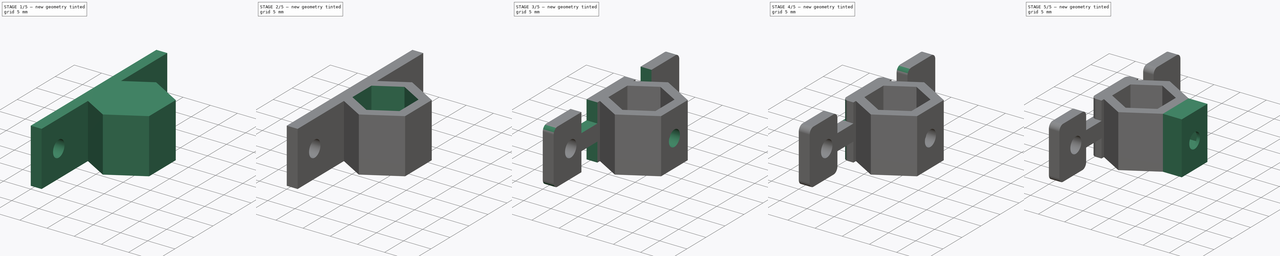
[diagram: build sequence overview — one tinted view per stage of 5, left to right]
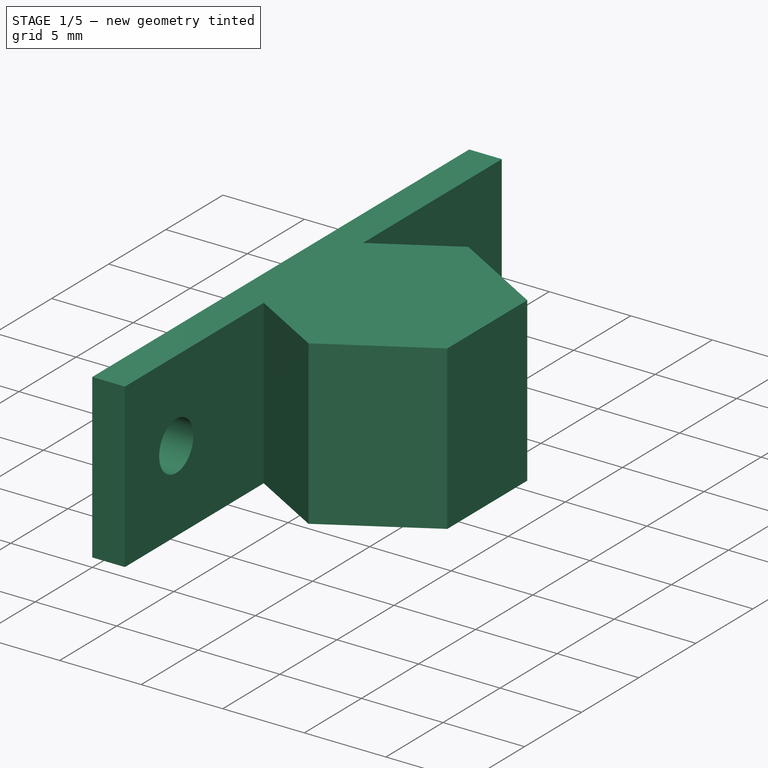
[diagram: stage 1 of 5 — iso view after this stage's code; geometry added in this stage tinted green]
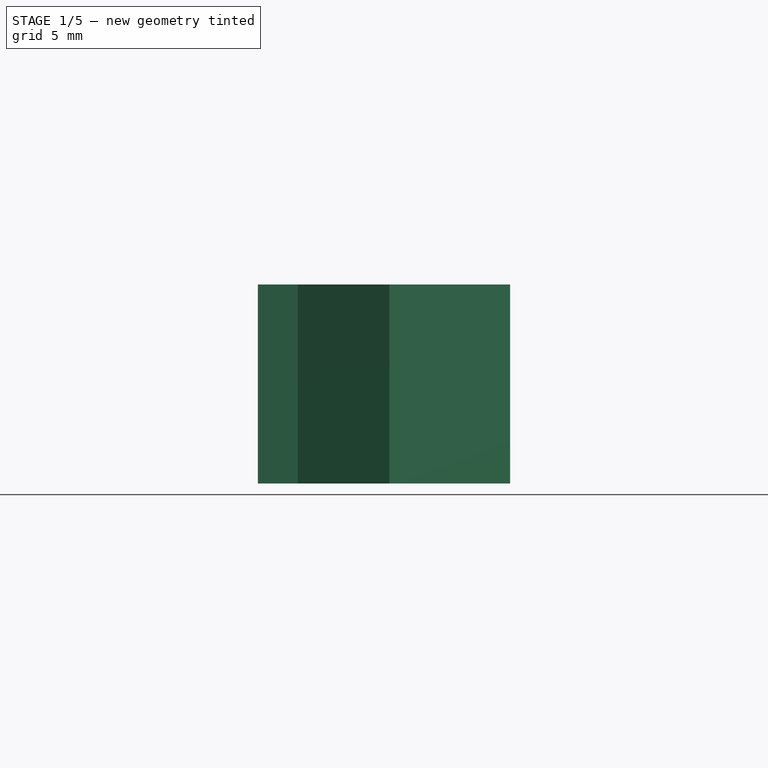
[diagram: stage 1 of 5 — front view after this stage's code; geometry added in this stage tinted green]
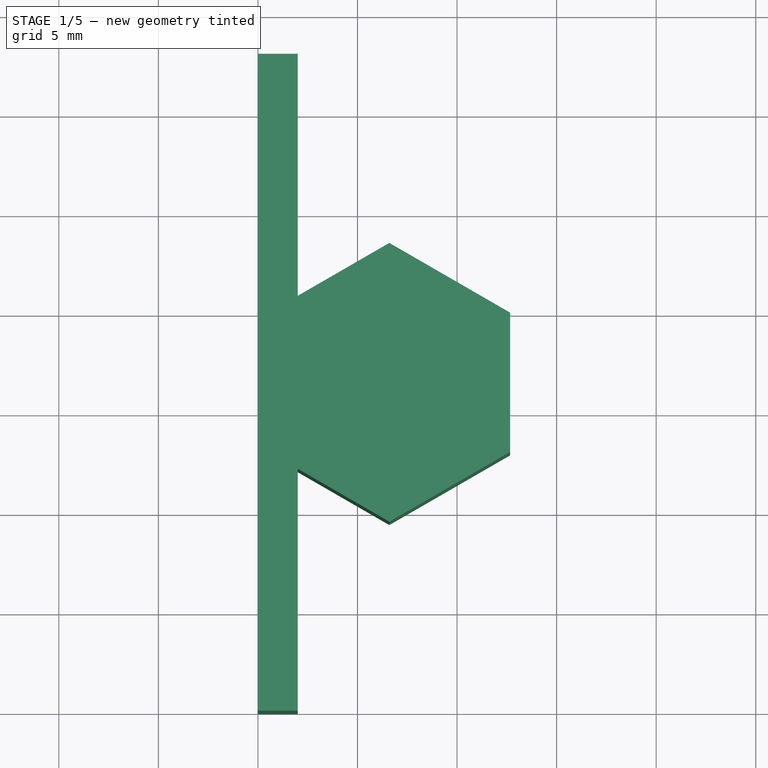
[diagram: stage 1 of 5 — top view after this stage's code; geometry added in this stage tinted green]
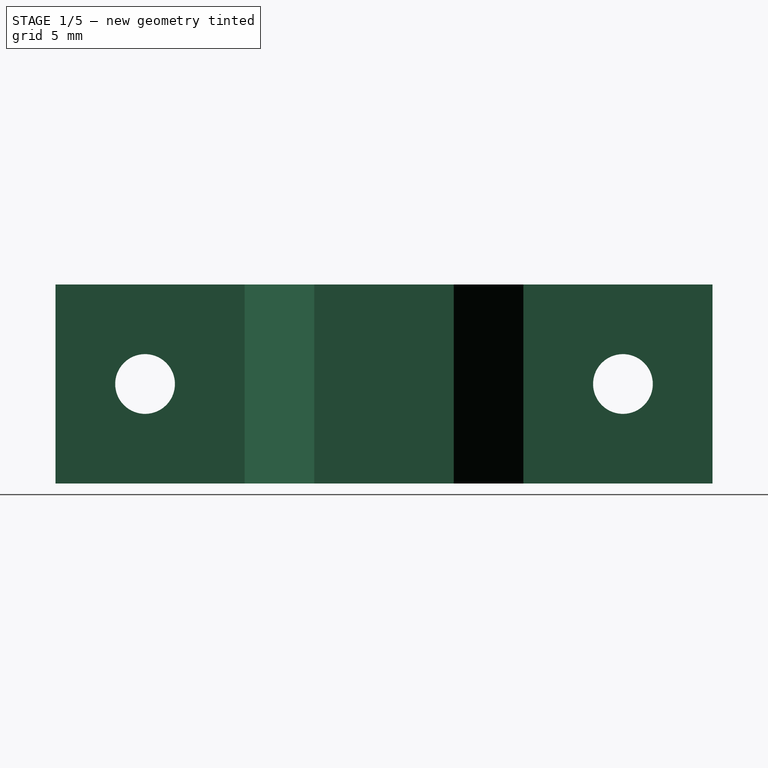
[diagram: stage 1 of 5 — right view after this stage's code; geometry added in this stage tinted green]
FCSTD DOCUMENT  (FreeCAD 0.17R13541 (Git))
Label: PlotterAdapter
License: Other
LicenseURL: https://www.gnu.org/licenses/gpl-2.0.html
objects: Sketcher::SketchObject×10, PartDesign::Pocket×7, Part::Feature×6, PartDesign::FeatureBase×4, PartDesign::Body×4, Part::MultiFuse×2, Part::Fillet×2, PartDesign::Pad×2, Part::Box×1, Part::Prism×1, Part::FeaturePython×1
note: 49 computed .brp shape members not serialized (recipe doc carries the construction recipe); baked Part::Feature solids carry a one-line shape summary decoded from their .brp

FEATURE [Part::Box] Box  label="Cube"
  AttacherType = Attacher::AttachEngine3D
  Height = 10
  Length = 2
  Width = 33
FEATURE [PartDesign::FeatureBase] BaseFeature
  BaseFeature = -> Box
FEATURE [Sketcher::SketchObject] Sketch
  ExternalGeometry = -> [BaseFeature]
  MapMode = 5
  Placement = pos=(2,0,0) rot=(0.57735,0.57735,0.57735;2.0944rad)
  Support = -> [BaseFeature]
  sketch-geometry (4):
    g0: Circle CenterX=4.5 CenterY=5 CenterZ=0 NormalX=0 NormalY=0 NormalZ=1 AngleXU=0 Radius=1.5
    g1: Circle CenterX=28.5 CenterY=5 CenterZ=0 NormalX=0 NormalY=0 NormalZ=1 AngleXU=0 Radius=1.5
    g2: LineSegment [constr] StartX=0 StartY=5 StartZ=0 EndX=33 EndY=5 EndZ=0
    g3: GeomPoint X=16.5 Y=5 Z=0
  constraints (12):
    c: Horizontal(g2)
    c: PointOnObject(g2,g-5)
    c: PointOnObject(g2,g-6)
    c: Symmetric(g-5,g-1,g2)
    c: PointOnObject(g0,g2)
    c: PointOnObject(g1,g2)
    c: Radius(g0) = 1.5
    c: Radius(g1) = 1.5
    c: DistanceX(g0,g1) = 24
    c: PointOnObject(g3,g2)
    c: Symmetric(g0,g1,g3)
    c: Symmetric(g2,g2,g3)
FEATURE [PartDesign::Pocket] Pocket
  BaseFeature = -> BaseFeature
  Length = 5
  Length2 = 100
  Profile = -> Sketch
  Type = 1
FEATURE [Part::Prism] Prism
  AttacherType = Attacher::AttachEngine3D
  Circumradius = 7
  Height = 10
  Placement = pos=(6.6,16.5,0) rot=(0,0,-1;1.5708rad)
  Polygon = 6
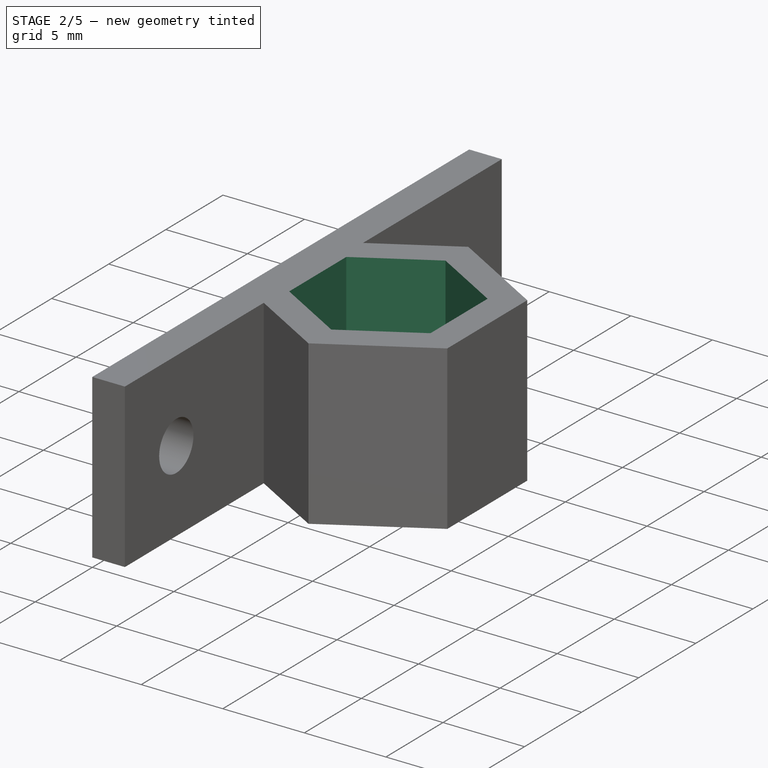
[diagram: stage 2 of 5 — iso view after this stage's code; geometry added in this stage tinted green]
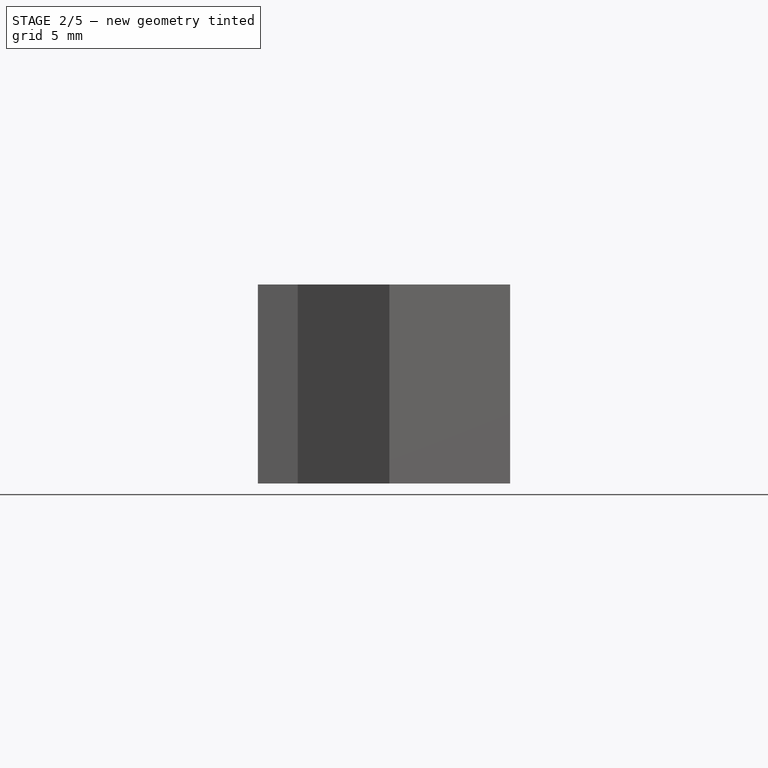
[diagram: stage 2 of 5 — front view after this stage's code; geometry added in this stage tinted green]
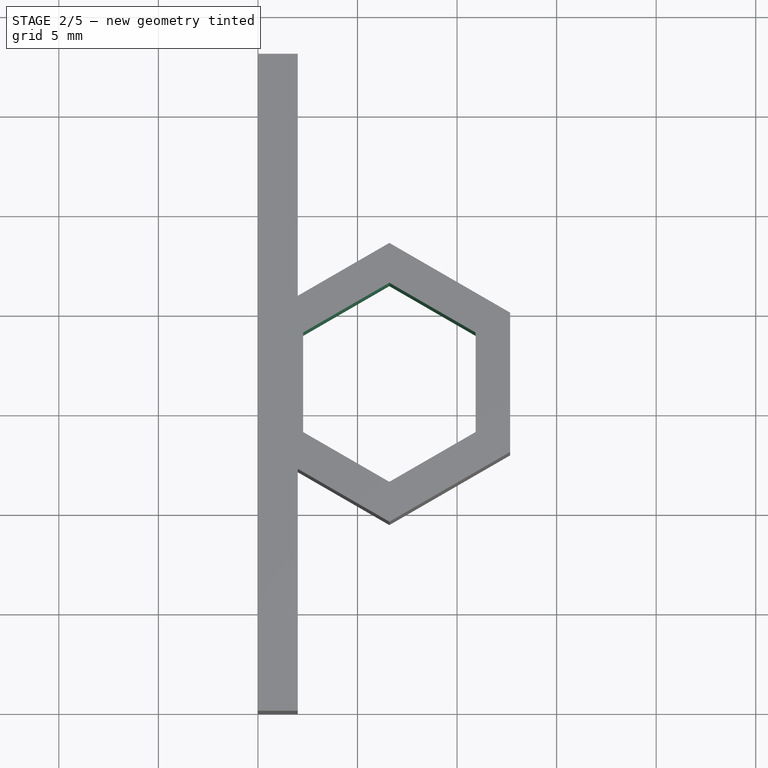
[diagram: stage 2 of 5 — top view after this stage's code; geometry added in this stage tinted green]
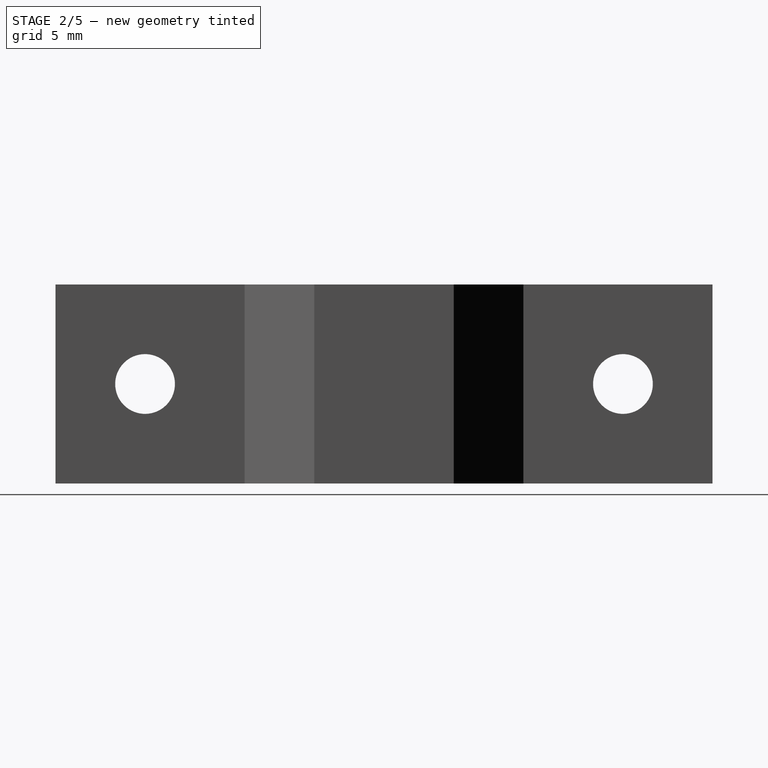
[diagram: stage 2 of 5 — right view after this stage's code; geometry added in this stage tinted green]
FEATURE [Sketcher::SketchObject] Sketch001  label="AlignHex"
  ExternalGeometry = -> [Pocket]
  MapMode = 5
  Placement = pos=(0,0,10) rot=(0,0,1;0rad)
  Support = -> [Pocket]
  sketch-geometry (2):
    g0: LineSegment StartX=0 StartY=13.75 StartZ=0 EndX=0 EndY=19.25 EndZ=0
    g1: GeomPoint X=0 Y=16.5 Z=0
  constraints (5):
    c: PointOnObject(g0,g-3)
    c: PointOnObject(g0,g-3)
    c: DistanceY(g0,g0) = 5.5
    c: Symmetric(g0,g0,g1)
    c: Symmetric(g-1,g-5,g1)
FEATURE [PartDesign::Body] Body
  BaseFeature = -> Box
  Group = -> [BaseFeature,Sketch,Pocket,Sketch001]
  Origin = -> Origin
  Tip = -> Pocket
FEATURE [Part::MultiFuse] Fusion
  Shapes = -> [Pocket,Prism]
FEATURE [PartDesign::FeatureBase] BaseFeature001
  BaseFeature = -> Fusion
FEATURE [Sketcher::SketchObject] Sketch005
  ExternalGeometry = -> [BaseFeature001]
  MapMode = 5
  Placement = pos=(0,0,0) rot=(1,0,0;3.14159rad)
  Support = -> [BaseFeature001]
  sketch-geometry (7):
    g0: LineSegment StartX=10.9301 StartY=-19 StartZ=0 EndX=10.9301 EndY=-14 EndZ=0
    g1: LineSegment StartX=10.9301 StartY=-14 StartZ=0 EndX=6.6 EndY=-11.5 EndZ=0
    g2: LineSegment StartX=6.6 StartY=-11.5 StartZ=0 EndX=2.26987 EndY=-14 EndZ=0
    g3: LineSegment StartX=2.26987 StartY=-14 StartZ=0 EndX=2.26987 EndY=-19 EndZ=0
    g4: LineSegment StartX=2.26987 StartY=-19 StartZ=0 EndX=6.6 EndY=-21.5 EndZ=0
    g5: LineSegment StartX=6.6 StartY=-21.5 StartZ=0 EndX=10.9301 EndY=-19 EndZ=0
    g6: Circle [constr] CenterX=6.6 CenterY=-16.5 CenterZ=0 NormalX=0 NormalY=0 NormalZ=1 AngleXU=0 Radius=5
  constraints (16):
    c: Coincident(g0,g1)
    c: Coincident(g1,g2)
    c: Coincident(g2,g3)
    c: Coincident(g3,g4)
    c: Coincident(g4,g5)
    c: Coincident(g5,g0)
    c: Equal(g0, g1-g5) x5
    c: PointOnObject(g0,g6)
    c: PointOnObject(g1,g6)
    c: PointOnObject(g2,g6)
    c: PointOnObject(g3,g6)
    c: PointOnObject(g4,g6)
    c: PointOnObject(g5,g6)
    c: Radius(g6) = 5
    c: Symmetric(g-6,g-5,g6)
    c: Vertical(g3)
FEATURE [PartDesign::Pocket] Pocket004
  BaseFeature = -> BaseFeature001
  Length = 5
  Length2 = 100
  Profile = -> Sketch005
  Type = 1
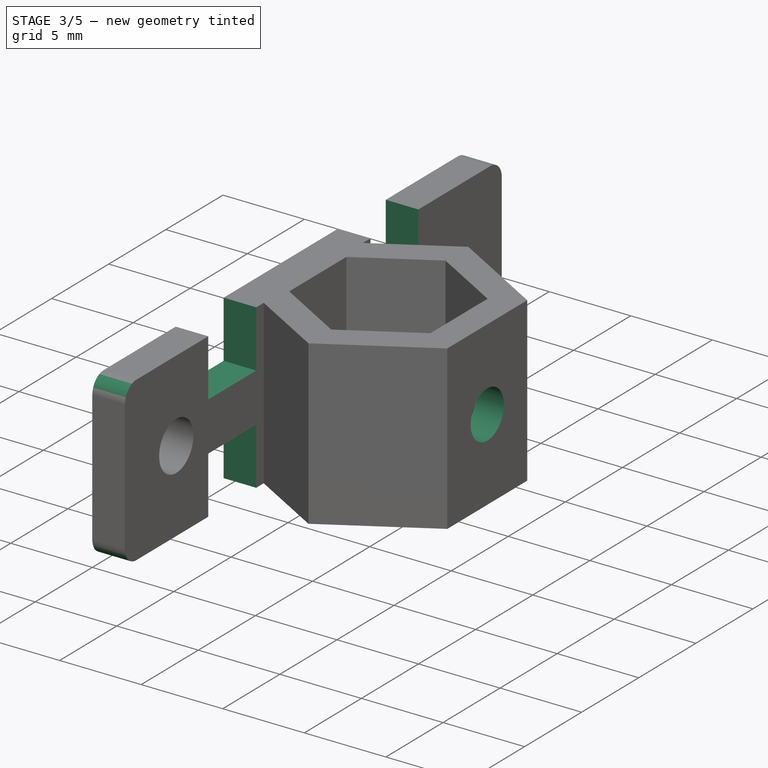
[diagram: stage 3 of 5 — iso view after this stage's code; geometry added in this stage tinted green]
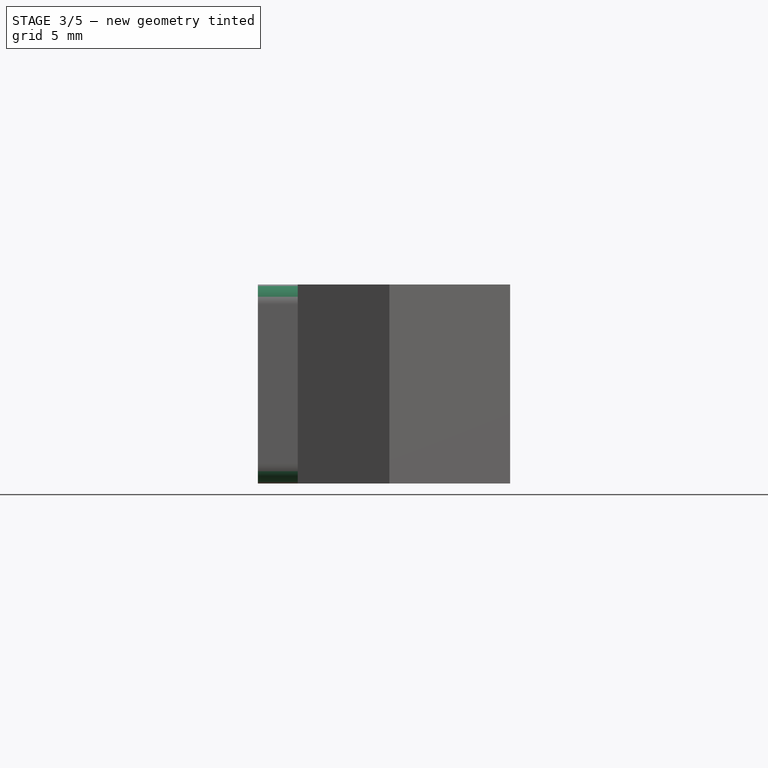
[diagram: stage 3 of 5 — front view after this stage's code; geometry added in this stage tinted green]
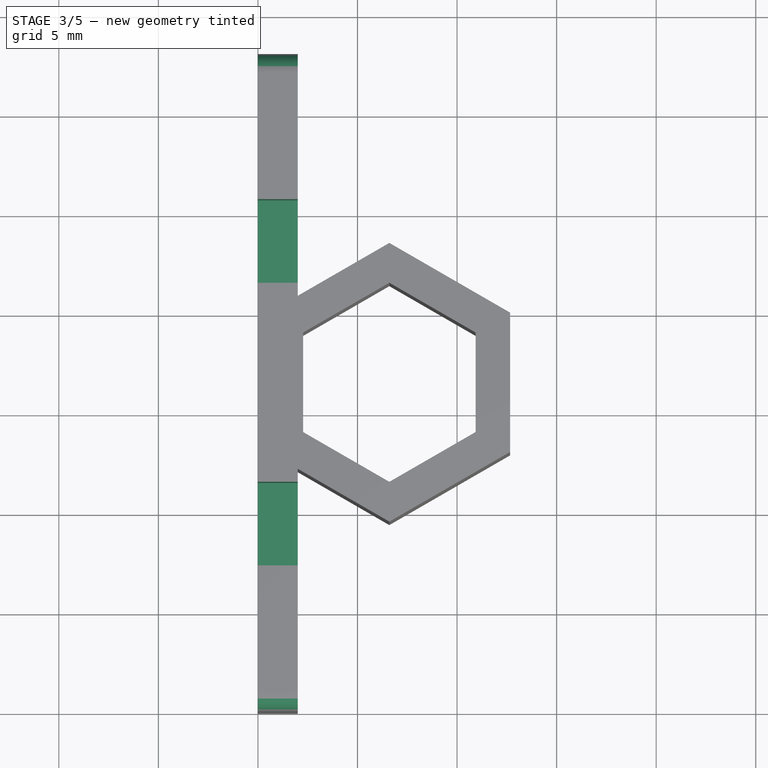
[diagram: stage 3 of 5 — top view after this stage's code; geometry added in this stage tinted green]
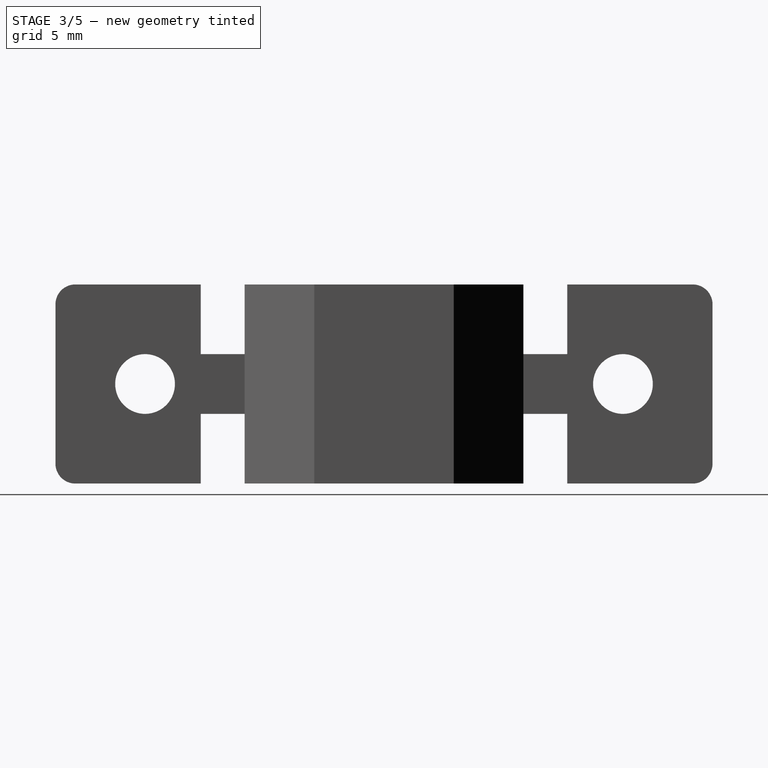
[diagram: stage 3 of 5 — right view after this stage's code; geometry added in this stage tinted green]
FEATURE [Sketcher::SketchObject] Sketch006
  ExternalGeometry = -> [Pocket004]
  MapMode = 5
  Placement = pos=(12.6622,0,0) rot=(0.57735,0.57735,0.57735;2.0944rad)
  Support = -> [Pocket004]
  sketch-geometry (3):
    g0: GeomPoint X=16.5 Y=10 Z=0
    g1: GeomPoint X=16.5 Y=0 Z=0
    g2: Circle CenterX=16.5 CenterY=5 CenterZ=0 NormalX=0 NormalY=0 NormalZ=1 AngleXU=0 Radius=1.45
  constraints (6):
    c: PointOnObject(g0,g-3)
    c: PointOnObject(g1,g-4)
    c: Symmetric(g-3,g-3,g0)
    c: Symmetric(g-4,g-4,g1)
    c: Symmetric(g0,g1,g2)
    c: Radius(g2) = 1.45
FEATURE [PartDesign::Pocket] Pocket005
  BaseFeature = -> Pocket004
  Length = 2
  Length2 = 100
  Profile = -> Sketch006
  Type = 0
FEATURE [PartDesign::Body] Body001  label="UnionHex"
  BaseFeature = -> Fusion
  Group = -> [BaseFeature001,Sketch005,Pocket004,Sketch006,Pocket005]
  Origin = -> Origin001
  Tip = -> Pocket005
FEATURE [Part::Fillet] Fillet
  Base = -> Pocket005
  Edges = 4 edges r=1: [Edge7,Edge9,Edge10,Edge16]
FEATURE [PartDesign::FeatureBase] BaseFeature002
  BaseFeature = -> Fillet
FEATURE [Sketcher::SketchObject] Sketch004
  ExternalGeometry = -> [BaseFeature002]
  MapMode = 5
  Placement = pos=(0,0,0) rot=(0.57735,-0.57735,-0.57735;2.0944rad)
  Support = -> [BaseFeature002]
  sketch-geometry (18):
    g0: LineSegment StartX=-25.7 StartY=10 StartZ=0 EndX=-21.5 EndY=10 EndZ=0
    g1: LineSegment StartX=-21.5 StartY=10 StartZ=0 EndX=-21.5 EndY=6.5 EndZ=0
    g2: LineSegment StartX=-21.5 StartY=6.5 StartZ=0 EndX=-25.7 EndY=6.5 EndZ=0
    g3: LineSegment StartX=-25.7 StartY=6.5 StartZ=0 EndX=-25.7 EndY=10 EndZ=0
    g4: LineSegment StartX=-25.7 StartY=3.5 StartZ=0 EndX=-21.5 EndY=3.5 EndZ=0
    g5: LineSegment StartX=-21.5 StartY=3.5 StartZ=0 EndX=-21.5 EndY=0 EndZ=0
    g6: LineSegment StartX=-21.5 StartY=0 StartZ=0 EndX=-25.7 EndY=0 EndZ=0
    g7: LineSegment StartX=-25.7 StartY=0 StartZ=0 EndX=-25.7 EndY=3.5 EndZ=0
    g8: LineSegment StartX=-11.5 StartY=10 StartZ=0 EndX=-7.3 EndY=10 EndZ=0
    g9: LineSegment StartX=-7.3 StartY=10 StartZ=0 EndX=-7.3 EndY=6.5 EndZ=0
    g10: LineSegment StartX=-7.3 StartY=6.5 StartZ=0 EndX=-11.5 EndY=6.5 EndZ=0
    g11: LineSegment StartX=-11.5 StartY=6.5 StartZ=0 EndX=-11.5 EndY=10 EndZ=0
    g12: LineSegment StartX=-11.5 StartY=3.5 StartZ=0 EndX=-7.3 EndY=3.5 EndZ=0
    g13: LineSegment StartX=-7.3 StartY=3.5 StartZ=0 EndX=-7.3 EndY=0 EndZ=0
    g14: LineSegment StartX=-7.3 StartY=0 StartZ=0 EndX=-11.5 EndY=0 EndZ=0
    g15: LineSegment StartX=-11.5 StartY=0 StartZ=0 EndX=-11.5 EndY=3.5 EndZ=0
    g16: GeomPoint X=-16.5 Y=10 Z=0
    g17: GeomPoint X=-16.5 Y=0 Z=0
  constraints (50):
    c: Coincident(g0,g1)
    c: Coincident(g1,g2)
    c: Coincident(g2,g3)
    c: Coincident(g3,g0)
    c: Horizontal(g2)
    c: Vertical(g1)
    c: Vertical(g3)
    c: Coincident(g4,g5)
    c: Coincident(g5,g6)
    c: Coincident(g6,g7)
    c: Coincident(g7,g4)
    c: Horizontal(g4)
    c: Vertical(g5)
    c: Vertical(g7)
    c: Coincident(g8,g9)
    c: Coincident(g9,g10)
    c: Coincident(g10,g11)
    c: Coincident(g11,g8)
    c: Horizontal(g10)
    c: Vertical(g9)
    c: Vertical(g11)
    c: Coincident(g12,g13)
    c: Coincident(g13,g14)
    c: Coincident(g14,g15)
    c: Coincident(g15,g12)
    c: Horizontal(g12)
    c: Vertical(g13)
    c: Vertical(g15)
    c: PointOnObject(g0,g-5)
    c: PointOnObject(g0,g-5)
    c: PointOnObject(g8,g-5)
    c: PointOnObject(g8,g-5)
    c: PointOnObject(g6,g-6)
    c: PointOnObject(g5,g-6)
    c: PointOnObject(g14,g-6)
    c: PointOnObject(g13,g-6)
    c: DistanceX(g0,g8) = 10
    c: Symmetric(g-5,g-5,g16)
    c: Symmetric(g0,g8,g16)
    c: Symmetric(g5,g14,g17)
    c: Symmetric(g-6,g-6,g17)
    c: DistanceY(g3,g3) = 3.5
    c: DistanceX(g0,g0) = 4.2
    c: Equal(g14,g8)
    c: Equal(g0,g6)
    c: DistanceX(g5,g14) = 10
    c: Equal(g3,g7)
    c: Equal(g3,g11)
    c: Equal(g3,g15)
    c: Equal(g8,g0)
FEATURE [PartDesign::Pocket] Pocket003  label="ReduceHeight"
  BaseFeature = -> BaseFeature002
  Length = 2
  Length2 = 100
  Profile = -> Sketch004
  Type = 0
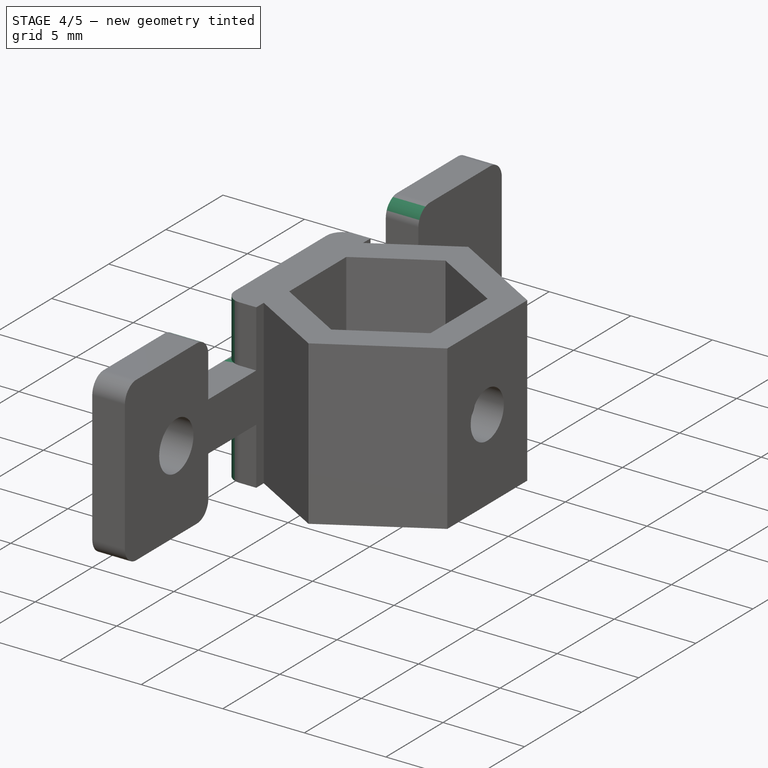
[diagram: stage 4 of 5 — iso view after this stage's code; geometry added in this stage tinted green]
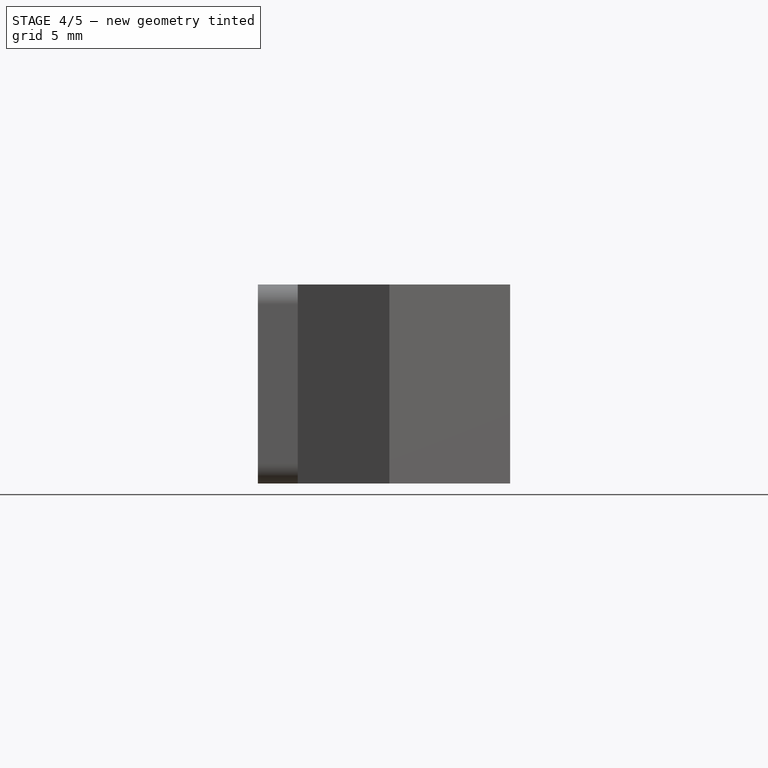
[diagram: stage 4 of 5 — front view after this stage's code; geometry added in this stage tinted green]
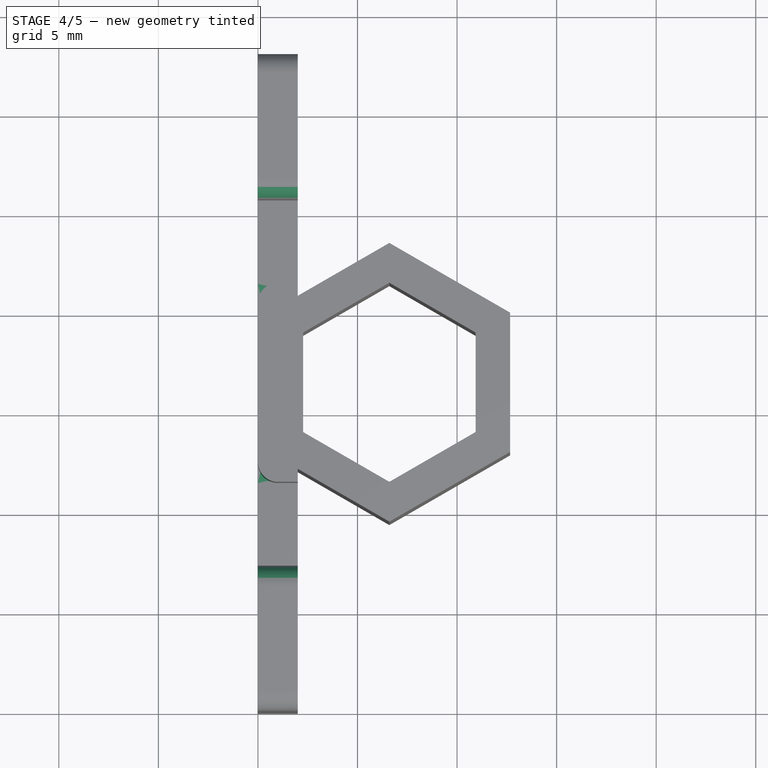
[diagram: stage 4 of 5 — top view after this stage's code; geometry added in this stage tinted green]
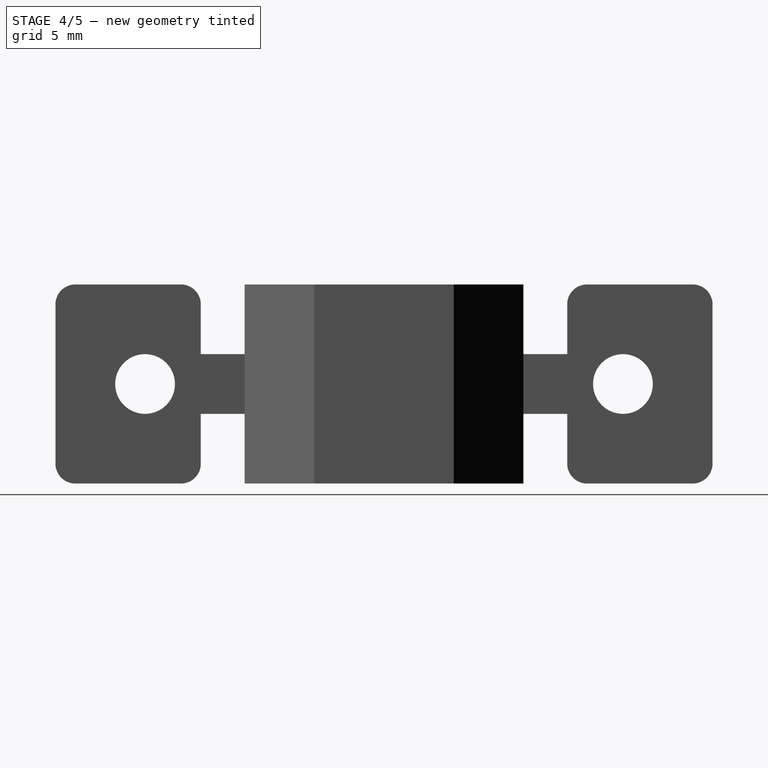
[diagram: stage 4 of 5 — right view after this stage's code; geometry added in this stage tinted green]
FEATURE [PartDesign::Body] Body002  label="FilletBody"
  BaseFeature = -> Fillet
  Group = -> [BaseFeature002,Sketch004,Pocket003]
  Origin = -> Origin002
  Tip = -> Pocket003
FEATURE [Part::Fillet] Fillet001
  Base = -> Pocket003
  Edges = 8 edges r=1: [Edge6,Edge8,Edge18,Edge20,Edge32,Edge50,Edge60,Edge78]
FEATURE [PartDesign::FeatureBase] BaseFeature003
  BaseFeature = -> Fillet001
FEATURE [Part::Feature] path5215
  shape: bbox 3.575 x 6.158 x 2.133e-07 mm, 1 faces, 0 solids (baked)
FEATURE [Part::Feature] path5215001
  shape: bbox 8.492 x 6.158 x 2.133e-07 mm, 1 faces, 0 solids (baked)
FEATURE [Part::Feature] path5215002
  shape: bbox 15.48 x 6.158 x 2.133e-07 mm, 1 faces, 0 solids (baked)
FEATURE [Part::Feature] path5215003
  shape: bbox 67.73 x 6.158 x 2.133e-07 mm, 1 faces, 0 solids (baked)
FEATURE [Part::Feature] path5215004
  shape: bbox 29.31 x 6.158 x 2.133e-07 mm, 1 faces, 0 solids (baked)
FEATURE [Part::Feature] path5215005
  shape: bbox 4.886 x 6.158 x 2.133e-07 mm, 1 faces, 0 solids (baked)
FEATURE [Part::MultiFuse] Fusion001  label="MagicLogo"
  Shapes = -> [path5215,path5215001,path5215002,path5215003,path5215004,path5215005]
FEATURE [Sketcher::SketchObject] Sketch007  label="AlignLogo"
  sketch-geometry (33):
    g0: BSplineCurve PolesCount=4 KnotsCount=2 Degree=3 IsPeriodic=0
    g1: BSplineCurve PolesCount=4 KnotsCount=2 Degree=3 IsPeriodic=0
    g2: BSplineCurve PolesCount=2 KnotsCount=2 Degree=1 IsPeriodic=0
    g3: BSplineCurve PolesCount=4 KnotsCount=2 Degree=3 IsPeriodic=0
    g4: BSplineCurve PolesCount=4 KnotsCount=2 Degree=3 IsPeriodic=0
    g5: BSplineCurve PolesCount=2 KnotsCount=2 Degree=1 IsPeriodic=0
    g6: BSplineCurve PolesCount=4 KnotsCount=2 Degree=3 IsPeriodic=0
    g7: BSplineCurve PolesCount=2 KnotsCount=2 Degree=1 IsPeriodic=0
    g8: BSplineCurve PolesCount=4 KnotsCount=2 Degree=3 IsPeriodic=0
    g9: BSplineCurve PolesCount=2 KnotsCount=2 Degree=1 IsPeriodic=0
    g10: BSplineCurve PolesCount=4 KnotsCount=2 Degree=3 IsPeriodic=0
    g11: BSplineCurve PolesCount=2 KnotsCount=2 Degree=1 IsPeriodic=0
    g12: BSplineCurve PolesCount=4 KnotsCount=2 Degree=3 IsPeriodic=0
    g13: BSplineCurve PolesCount=2 KnotsCount=2 Degree=1 IsPeriodic=0
    g14: BSplineCurve PolesCount=4 KnotsCount=2 Degree=3 IsPeriodic=0
    g15: BSplineCurve PolesCount=4 KnotsCount=2 Degree=3 IsPeriodic=0
    g16: BSplineCurve PolesCount=4 KnotsCount=2 Degree=3 IsPeriodic=0
    g17: BSplineCurve PolesCount=2 KnotsCount=2 Degree=1 IsPeriodic=0
    g18: BSplineCurve PolesCount=4 KnotsCount=2 Degree=3 IsPeriodic=0
    g19: BSplineCurve PolesCount=4 KnotsCount=2 Degree=3 IsPeriodic=0
    g20: BSplineCurve PolesCount=4 KnotsCount=2 Degree=3 IsPeriodic=0
    g21: BSplineCurve PolesCount=2 KnotsCount=2 Degree=1 IsPeriodic=0
    g22: BSplineCurve PolesCount=4 KnotsCount=2 Degree=3 IsPeriodic=0
    g23: BSplineCurve PolesCount=4 KnotsCount=2 Degree=3 IsPeriodic=0
    g24: BSplineCurve PolesCount=2 KnotsCount=2 Degree=1 IsPeriodic=0
    g25: BSplineCurve PolesCount=4 KnotsCount=2 Degree=3 IsPeriodic=0
    g26: BSplineCurve PolesCount=4 KnotsCount=2 Degree=3 IsPeriodic=0
    g27: BSplineCurve PolesCount=2 KnotsCount=2 Degree=1 IsPeriodic=0
    g28: BSplineCurve PolesCount=4 KnotsCount=2 Degree=3 IsPeriodic=0
    g29: BSplineCurve PolesCount=4 KnotsCount=2 Degree=3 IsPeriodic=0
    g30: BSplineCurve PolesCount=4 KnotsCount=2 Degree=3 IsPeriodic=0
    g31: BSplineCurve PolesCount=4 KnotsCount=2 Degree=3 IsPeriodic=0
    g32: BSplineCurve PolesCount=2 KnotsCount=2 Degree=1 IsPeriodic=0
  constraints (33):
    c: Coincident(g0,g1)
    c: Coincident(g1,g2)
    c: Coincident(g2,g3)
    c: Coincident(g3,g4)
    c: Coincident(g4,g5)
    c: Coincident(g5,g0)
    c: Coincident(g6,g7)
    c: Coincident(g7,g8)
    c: Coincident(g8,g9)
    c: Coincident(g9,g6)
    c: Coincident(g10,g11)
    c: Coincident(g11,g12)
    c: Coincident(g12,g13)
    c: Coincident(g13,g10)
    c: Coincident(g14,g15)
    c: Coincident(g15,g16)
    c: Coincident(g16,g17)
    c: Coincident(g17,g18)
    c: Coincident(g18,g19)
    c: Coincident(g19,g20)
    c: Coincident(g20,g21)
    c: Coincident(g21,g14)
    c: Coincident(g22,g23)
    c: Coincident(g23,g24)
    c: Coincident(g24,g25)
    c: Coincident(g25,g26)
    c: Coincident(g26,g27)
    c: Coincident(g27,g22)
    c: Coincident(g28,g29)
    c: Coincident(g29,g30)
    c: Coincident(g30,g31)
    c: Coincident(g31,g32)
    c: Coincident(g32,g28)
FEATURE [Part::FeaturePython] Scale  # Draft clone (typed FeaturePython)
  Fuse = false
  Objects = -> [Sketch007]
  Placement = pos=(-0.0301548,20.0356,8.5637) rot=(-0.57735,0.57735,0.57735;4.18879rad)
  Scale = (0.1,0.1,0.1)
FEATURE [Sketcher::SketchObject] Sketch009  label="ScaledLogo"
  AttachmentOffset = pos=(0,0,0) rot=(0,0,1;1.5708rad)
  MapMode = 5
  Placement = pos=(0,0,0) rot=(0,-1,0;1.5708rad)
  Support = -> [BaseFeature003]
  sketch-geometry (33):
    g0: BSplineCurve PolesCount=4 KnotsCount=2 Degree=3 IsPeriodic=0
    g1: BSplineCurve PolesCount=4 KnotsCount=2 Degree=3 IsPeriodic=0
    g2: BSplineCurve PolesCount=2 KnotsCount=2 Degree=1 IsPeriodic=0
    g3: BSplineCurve PolesCount=4 KnotsCount=2 Degree=3 IsPeriodic=0
    g4: BSplineCurve PolesCount=4 KnotsCount=2 Degree=3 IsPeriodic=0
    g5: BSplineCurve PolesCount=2 KnotsCount=2 Degree=1 IsPeriodic=0
    g6: BSplineCurve PolesCount=4 KnotsCount=2 Degree=3 IsPeriodic=0
    g7: BSplineCurve PolesCount=2 KnotsCount=2 Degree=1 IsPeriodic=0
    g8: BSplineCurve PolesCount=4 KnotsCount=2 Degree=3 IsPeriodic=0
    g9: BSplineCurve PolesCount=2 KnotsCount=2 Degree=1 IsPeriodic=0
    g10: BSplineCurve PolesCount=4 KnotsCount=2 Degree=3 IsPeriodic=0
    g11: BSplineCurve PolesCount=2 KnotsCount=2 Degree=1 IsPeriodic=0
    g12: BSplineCurve PolesCount=4 KnotsCount=2 Degree=3 IsPeriodic=0
    g13: BSplineCurve PolesCount=2 KnotsCount=2 Degree=1 IsPeriodic=0
    g14: BSplineCurve PolesCount=4 KnotsCount=2 Degree=3 IsPeriodic=0
    g15: BSplineCurve PolesCount=4 KnotsCount=2 Degree=3 IsPeriodic=0
    g16: BSplineCurve PolesCount=4 KnotsCount=2 Degree=3 IsPeriodic=0
    g17: BSplineCurve PolesCount=2 KnotsCount=2 Degree=1 IsPeriodic=0
    g18: BSplineCurve PolesCount=4 KnotsCount=2 Degree=3 IsPeriodic=0
    g19: BSplineCurve PolesCount=4 KnotsCount=2 Degree=3 IsPeriodic=0
    g20: BSplineCurve PolesCount=4 KnotsCount=2 Degree=3 IsPeriodic=0
    g21: BSplineCurve PolesCount=2 KnotsCount=2 Degree=1 IsPeriodic=0
    g22: BSplineCurve PolesCount=4 KnotsCount=2 Degree=3 IsPeriodic=0
    g23: BSplineCurve PolesCount=4 KnotsCount=2 Degree=3 IsPeriodic=0
    g24: BSplineCurve PolesCount=2 KnotsCount=2 Degree=1 IsPeriodic=0
    g25: BSplineCurve PolesCount=4 KnotsCount=2 Degree=3 IsPeriodic=0
    g26: BSplineCurve PolesCount=4 KnotsCount=2 Degree=3 IsPeriodic=0
    g27: BSplineCurve PolesCount=2 KnotsCount=2 Degree=1 IsPeriodic=0
    g28: BSplineCurve PolesCount=4 KnotsCount=2 Degree=3 IsPeriodic=0
    g29: BSplineCurve PolesCount=4 KnotsCount=2 Degree=3 IsPeriodic=0
    g30: BSplineCurve PolesCount=4 KnotsCount=2 Degree=3 IsPeriodic=0
    g31: BSplineCurve PolesCount=4 KnotsCount=2 Degree=3 IsPeriodic=0
    g32: BSplineCurve PolesCount=2 KnotsCount=2 Degree=1 IsPeriodic=0
  constraints (33):
    c: Coincident(g0,g1)
    c: Coincident(g1,g2)
    c: Coincident(g2,g3)
    c: Coincident(g3,g4)
    c: Coincident(g4,g5)
    c: Coincident(g5,g0)
    c: Coincident(g6,g7)
    c: Coincident(g7,g8)
    c: Coincident(g8,g9)
    c: Coincident(g9,g6)
    c: Coincident(g10,g11)
    c: Coincident(g11,g12)
    c: Coincident(g12,g13)
    c: Coincident(g13,g10)
    c: Coincident(g14,g15)
    c: Coincident(g15,g16)
    c: Coincident(g16,g17)
    c: Coincident(g17,g18)
    c: Coincident(g18,g19)
    c: Coincident(g19,g20)
    c: Coincident(g20,g21)
    c: Coincident(g21,g14)
    c: Coincident(g22,g23)
    c: Coincident(g23,g24)
    c: Coincident(g24,g25)
    c: Coincident(g25,g26)
    c: Coincident(g26,g27)
    c: Coincident(g27,g22)
    c: Coincident(g28,g29)
    c: Coincident(g29,g30)
    c: Coincident(g30,g31)
    c: Coincident(g31,g32)
    c: Coincident(g32,g28)
FEATURE [PartDesign::Pocket] Pocket006
  BaseFeature = -> BaseFeature003
  Length = 1
  Length2 = 100
  Profile = -> Sketch009
  Type = 0
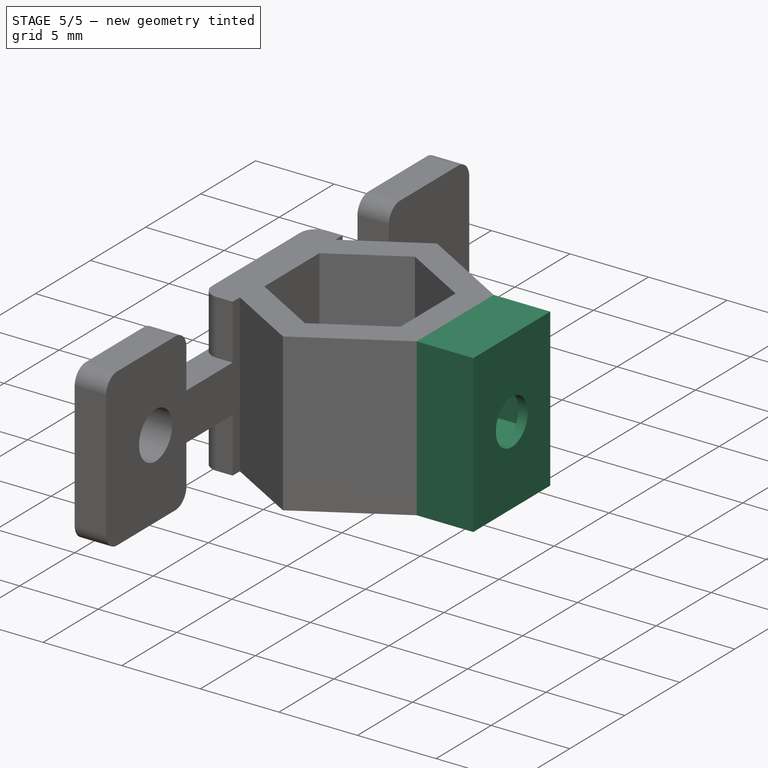
[diagram: stage 5 of 5 — iso view after this stage's code; geometry added in this stage tinted green]
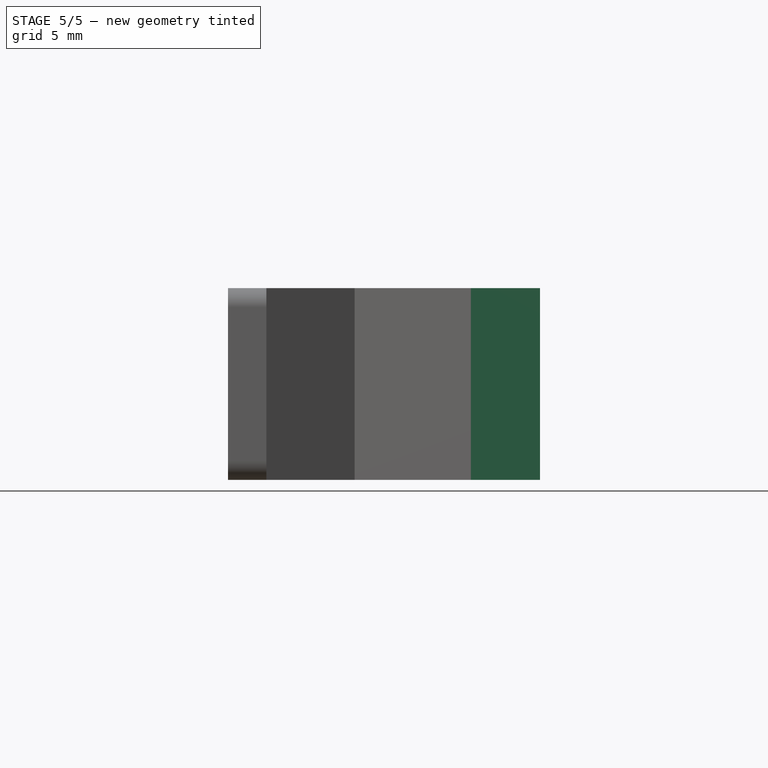
[diagram: stage 5 of 5 — front view after this stage's code; geometry added in this stage tinted green]
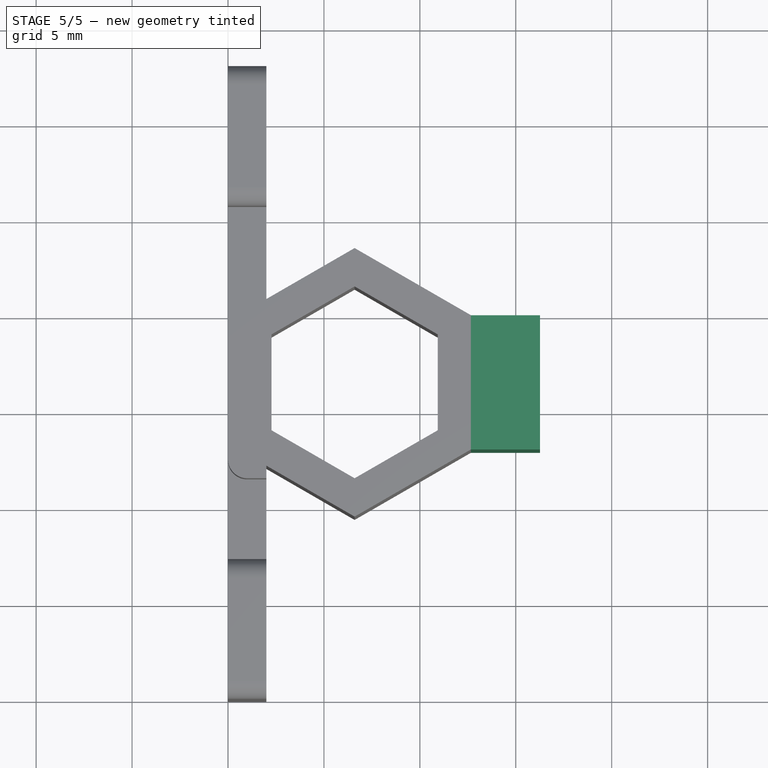
[diagram: stage 5 of 5 — top view after this stage's code; geometry added in this stage tinted green]
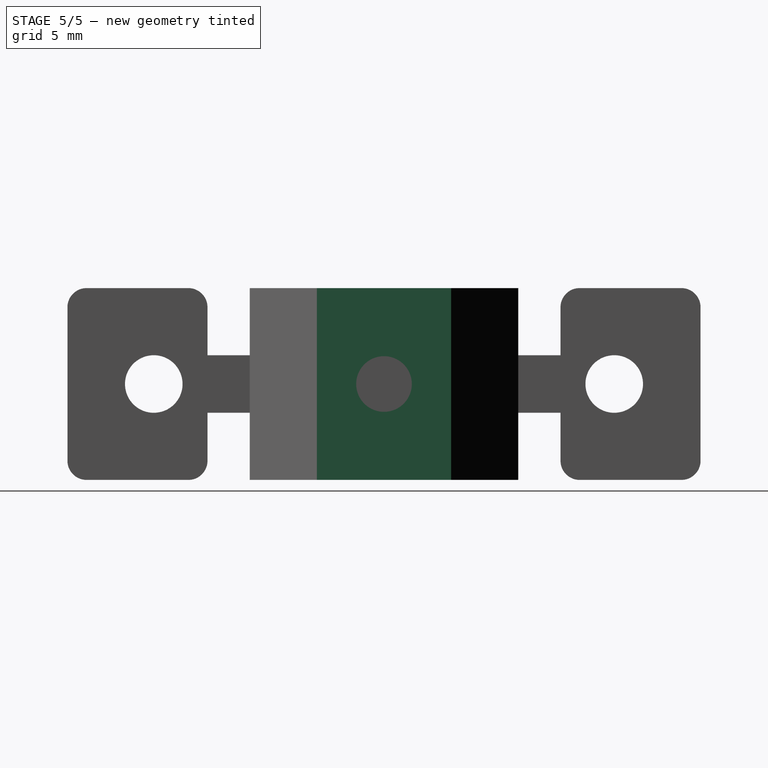
[diagram: stage 5 of 5 — right view after this stage's code; geometry added in this stage tinted green]
FEATURE [PartDesign::Pad] Pad
  BaseFeature = -> Pocket006
  Length = 3
  Length2 = 100
  Profile = -> Pocket006 [Face84]
  Type = 0
FEATURE [Sketcher::SketchObject] Sketch010
  ExternalGeometry = -> [Pad]
  MapMode = 5
  Placement = pos=(15.6622,0,0) rot=(0.57735,0.57735,0.57735;2.0944rad)
  Support = -> [Pad]
  sketch-geometry (9):
    g0: LineSegment StartX=13.2957 StartY=3.15 StartZ=0 EndX=16.5 EndY=1.3 EndZ=0
    g1: LineSegment StartX=16.5 StartY=1.3 StartZ=0 EndX=19.7043 EndY=3.15 EndZ=0
    g2: LineSegment StartX=19.7043 StartY=3.15 StartZ=0 EndX=19.7043 EndY=6.85 EndZ=0
    g3: LineSegment StartX=19.7043 StartY=6.85 StartZ=0 EndX=16.5 EndY=8.7 EndZ=0
    g4: LineSegment StartX=16.5 StartY=8.7 StartZ=0 EndX=13.2957 EndY=6.85 EndZ=0
    g5: LineSegment StartX=13.2957 StartY=6.85 StartZ=0 EndX=13.2957 EndY=3.15 EndZ=0
    g6: Circle [constr] CenterX=16.5 CenterY=5 CenterZ=0 NormalX=0 NormalY=0 NormalZ=1 AngleXU=0 Radius=3.7
    g7: GeomPoint X=16.5 Y=10 Z=0
    g8: GeomPoint X=16.5 Y=0 Z=0
  constraints (18):
    c: Coincident(g0,g1)
    c: Coincident(g1,g2)
    c: Coincident(g2,g3)
    c: Coincident(g3,g4)
    c: Coincident(g4,g5)
    c: Coincident(g5,g0)
    c: Equal(g0, g1-g5) x5
    c: PointOnObject(g0,g6)
    c: PointOnObject(g1,g6)
    c: PointOnObject(g2,g6)
    c: PointOnObject(g3,g6)
    c: PointOnObject(g4,g6)
    c: PointOnObject(g5,g6)
    c: Radius(g6) = 3.7
    c: Symmetric(g-3,g-3,g7)
    c: Symmetric(g-4,g-4,g8)
    c: Symmetric(g7,g8,g6)
    c: Vertical(g2)
FEATURE [PartDesign::Pocket] Pocket007
  BaseFeature = -> Pad
  Length = 3
  Length2 = 1
  Offset = 5
  Profile = -> Sketch010
  Type = 0
FEATURE [Sketcher::SketchObject] Sketch011
  ExternalGeometry = -> [Pocket007]
  MapMode = 5
  Placement = pos=(15.6622,0,0) rot=(0.57735,0.57735,0.57735;2.0944rad)
  Support = -> [Pocket007]
  sketch-geometry (4):
    g0: LineSegment StartX=13 StartY=10 StartZ=0 EndX=20 EndY=10 EndZ=0
    g1: LineSegment StartX=20 StartY=10 StartZ=0 EndX=20 EndY=0 EndZ=0
    g2: LineSegment StartX=20 StartY=0 StartZ=0 EndX=13 EndY=0 EndZ=0
    g3: LineSegment StartX=13 StartY=0 StartZ=0 EndX=13 EndY=10 EndZ=0
  constraints (11):
    c: Coincident(g0,g1)
    c: Coincident(g1,g2)
    c: Coincident(g2,g3)
    c: Coincident(g3,g0)
    c: Horizontal(g0)
    c: Horizontal(g2)
    c: Vertical(g1)
    c: Vertical(g3)
    c: Coincident(g-4,g0)
    c: Coincident(g-5,g0)
    c: Coincident(g2,g-6)
FEATURE [PartDesign::Pad] Pad001
  BaseFeature = -> Pocket007
  Length = 0.6
  Length2 = 100
  Profile = -> Sketch011
  Type = 0
FEATURE [Sketcher::SketchObject] Sketch012
  ExternalGeometry = -> [Pad001]
  MapMode = 5
  Placement = pos=(16.2622,0,0) rot=(0.57735,0.57735,0.57735;2.0944rad)
  Support = -> [Pad001]
  sketch-geometry (3):
    g0: GeomPoint X=16.5 Y=10 Z=0
    g1: GeomPoint X=16.5 Y=0 Z=0
    g2: Circle CenterX=16.5 CenterY=5 CenterZ=0 NormalX=0 NormalY=0 NormalZ=1 AngleXU=0 Radius=1.45
  constraints (6):
    c: PointOnObject(g0,g-3)
    c: PointOnObject(g1,g-4)
    c: Symmetric(g-3,g-3,g0)
    c: Symmetric(g-4,g-4,g1)
    c: Radius(g2) = 1.45
    c: Symmetric(g0,g1,g2)
FEATURE [PartDesign::Pocket] Pocket008
  BaseFeature = -> Pad001
  Length = 1
  Length2 = 100
  Profile = -> Sketch012
  Type = 0
FEATURE [PartDesign::Body] Body003  label="SecondFilletBody"
  BaseFeature = -> Fillet001
  Group = -> [BaseFeature003,Sketch009,Pocket006,Pad,Sketch010,Pocket007,Sketch011,Pad001,Sketch012,Pocket008]
  Origin = -> Origin003
  Tip = -> Pocket008
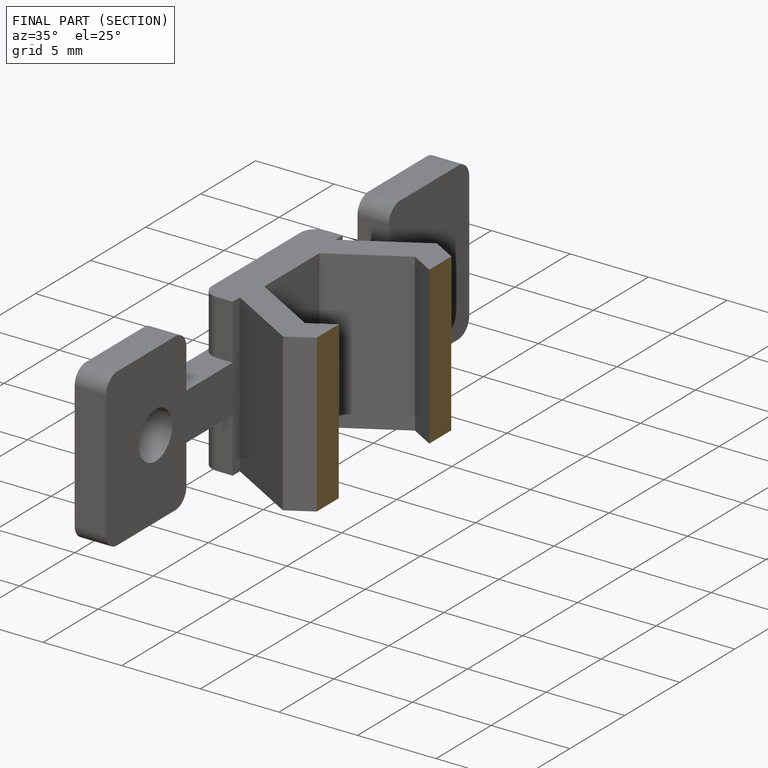
[diagram: finished part — half-section view (interior)]
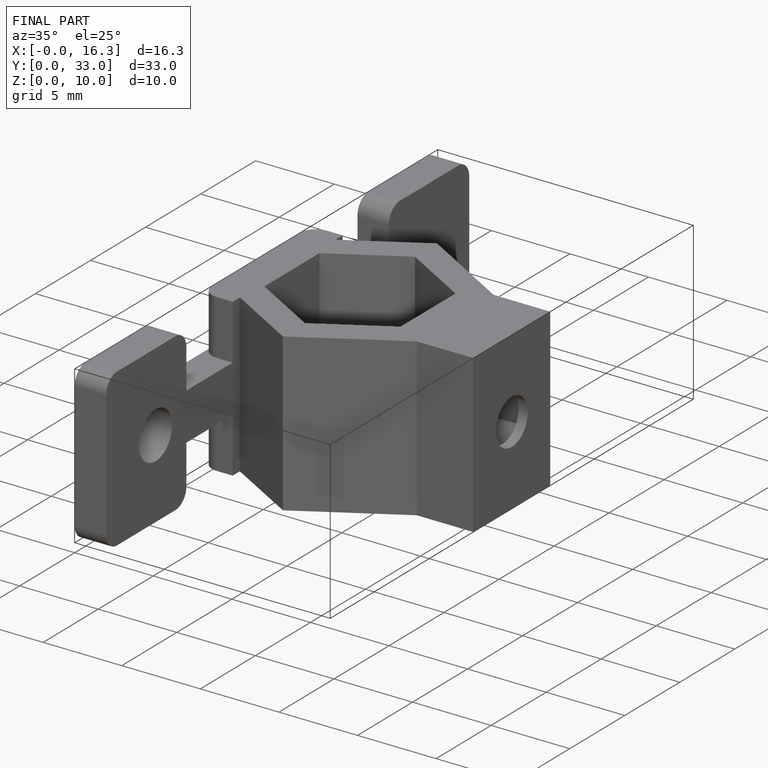
[diagram: finished part — iso view with bounding-box wireframe]
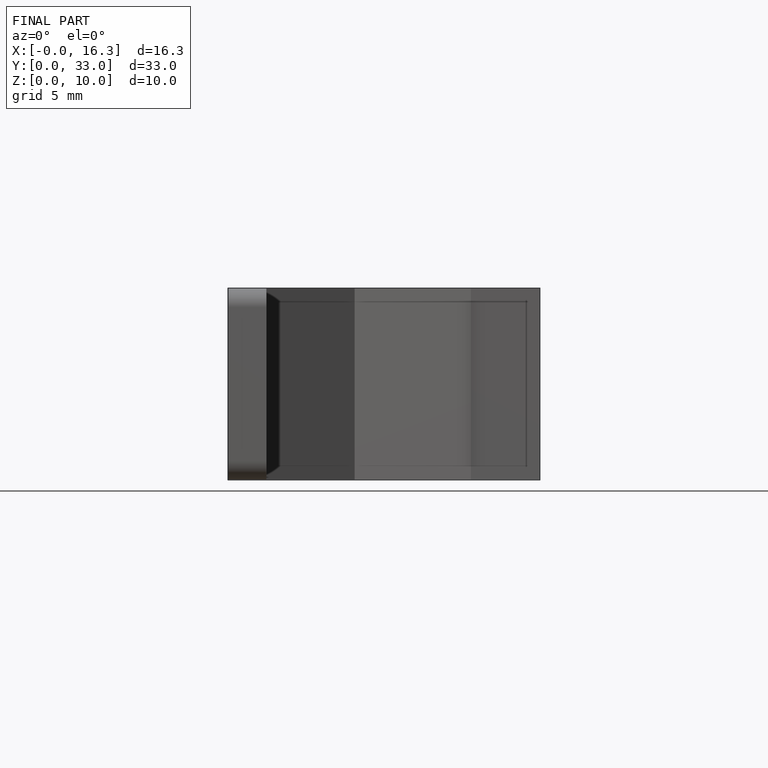
[diagram: finished part — front view with bounding-box wireframe]
